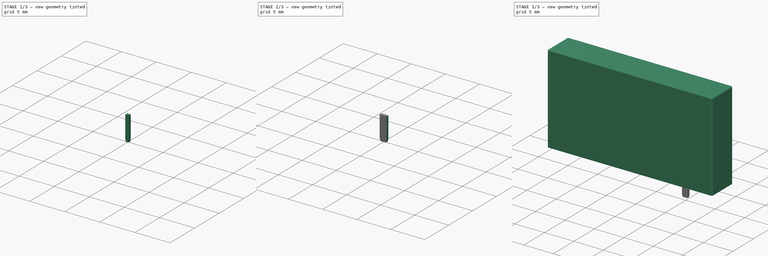
[diagram: build sequence overview — one tinted view per stage of 3, left to right]
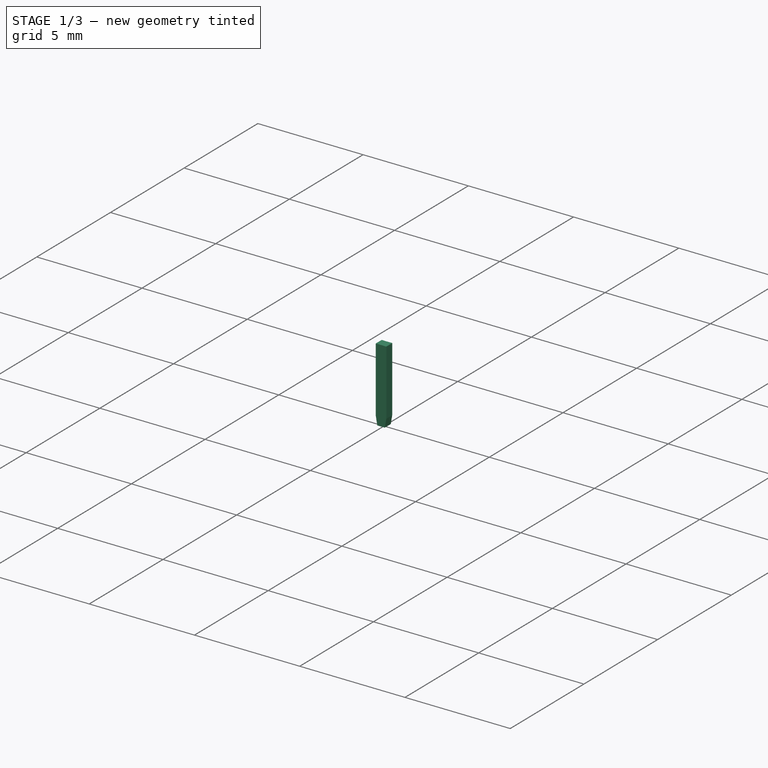
[diagram: stage 1 of 3 — iso view after this stage's code; geometry added in this stage tinted green]
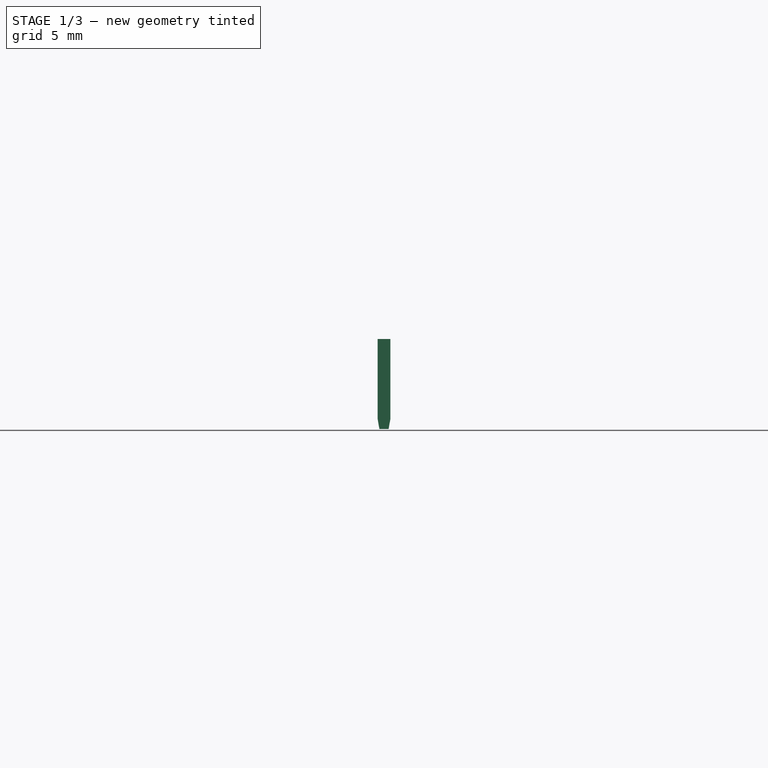
[diagram: stage 1 of 3 — front view after this stage's code; geometry added in this stage tinted green]
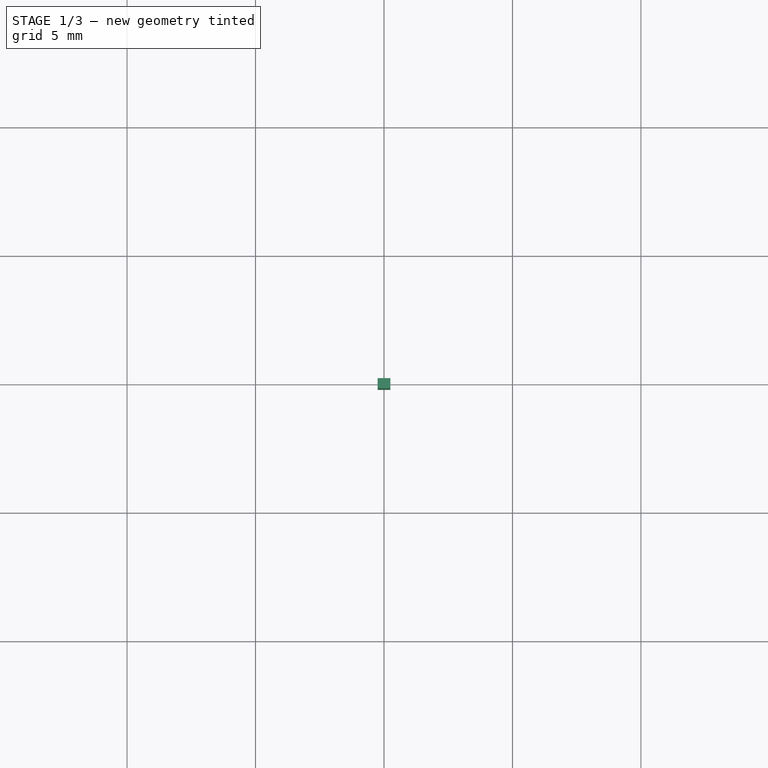
[diagram: stage 1 of 3 — top view after this stage's code; geometry added in this stage tinted green]
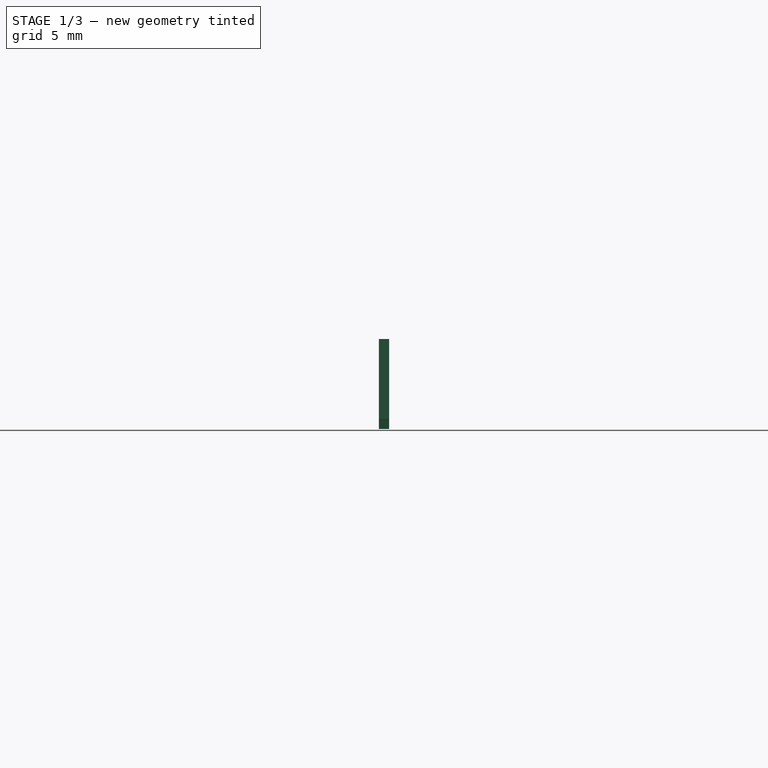
[diagram: stage 1 of 3 — right view after this stage's code; geometry added in this stage tinted green]
FCSTD DOCUMENT  (FreeCAD 0.19R21125 (Git))
Label: FTR-LY_Cxxx
License: All rights reserved
LicenseURL: http://en.wikipedia.org/wiki/All_rights_reserved
objects: Sketcher::SketchObject×3, PartDesign::Pad×3, PartDesign::Body×3, App::Link×3, PartDesign::Chamfer×2, PartDesign::Fillet×1
note: 18 computed .brp shape members not serialized (recipe doc carries the construction recipe); baked Part::Feature solids carry a one-line shape summary decoded from their .brp

FEATURE [PartDesign::Body] Body001  label="Pin 11"
  Group = -> [Sketch001,Pad001,Chamfer]
  Origin = -> Origin001
  Tip = -> Chamfer
FEATURE [App::Link] Link  label="Pin 14"
  LinkPlacement = pos=(5.04,0,0) rot=(0,0,1;0rad)
  LinkedObject = -> Body001
  Placement = pos=(5.04,0,0) rot=(0,0,1;0rad)
FEATURE [App::Link] Link001  label="Pin 12"
  LinkPlacement = pos=(-5.04,0,0) rot=(0,0,1;0rad)
  LinkedObject = -> Body001
  Placement = pos=(-5.04,0,0) rot=(0,0,1;0rad)
FEATURE [Sketcher::SketchObject] Sketch002
  MapMode = 5
  Support = -> [XY_Plane002]
  sketch-geometry (4):
    g0: LineSegment StartX=-0.25 StartY=0.2 StartZ=0 EndX=0.25 EndY=0.2 EndZ=0
    g1: LineSegment StartX=0.25 StartY=0.2 StartZ=0 EndX=0.25 EndY=-0.2 EndZ=0
    g2: LineSegment StartX=0.25 StartY=-0.2 StartZ=0 EndX=-0.25 EndY=-0.2 EndZ=0
    g3: LineSegment StartX=-0.25 StartY=-0.2 StartZ=0 EndX=-0.25 EndY=0.2 EndZ=0
  constraints (10):
    c: Coincident(g0,g1)
    c: Coincident(g1,g2)
    c: Coincident(g2,g3)
    c: Coincident(g3,g0)
    c: Horizontal(g2)
    c: Vertical(g3)
    c: DistanceX(g0,g0) = 0.5
    c: DistanceY(g1,g1) = 0.4
    c: Symmetric(g0,g0,g-2)
    c: Symmetric(g0,g1,g-1)
FEATURE [PartDesign::Pad] Pad002
  Length = 3.5
  Length2 = 100
  Profile = -> Sketch002
  Reversed = true
  Type = 0
FEATURE [App::Link] Link002  label="Pin A2"
  LinkPlacement = pos=(-16.38,0,0) rot=(0,0,1;0rad)
  LinkedObject = -> Body002
  Placement = pos=(-16.38,0,0) rot=(0,0,1;0rad)
FEATURE [PartDesign::Chamfer] Chamfer001
  Angle = 10
  Base = -> Pad002 [Edge7,Edge12]
  BaseFeature = -> Pad002
  Size = 0.4
  SupportTransform = true
FEATURE [PartDesign::Body] Body002  label="Pin A1"
  Group = -> [Sketch002,Pad002,Chamfer001]
  Origin = -> Origin002
  Placement = pos=(-20.16,0,0) rot=(0,0,1;0rad)
  Tip = -> Chamfer001
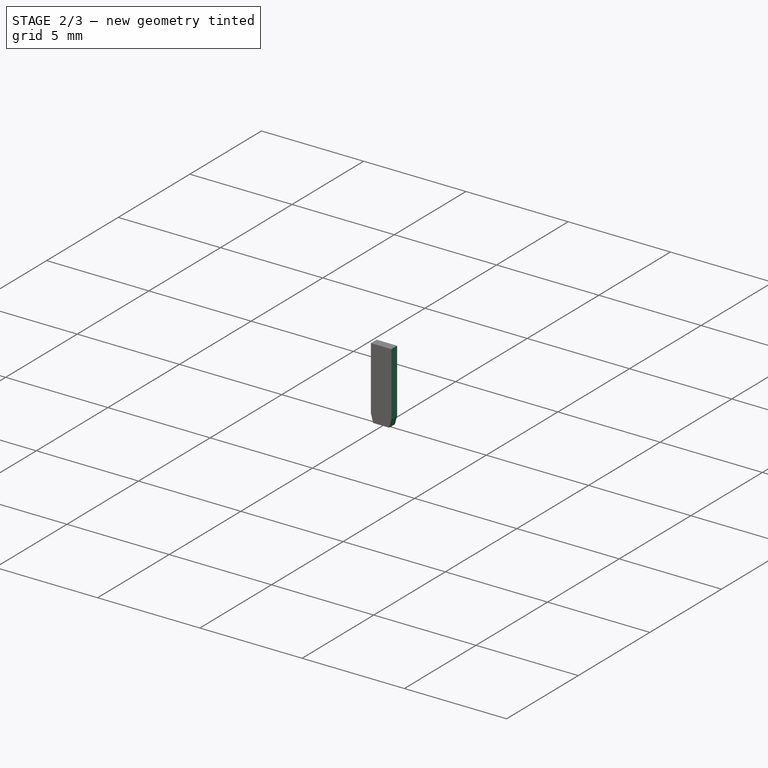
[diagram: stage 2 of 3 — iso view after this stage's code; geometry added in this stage tinted green]
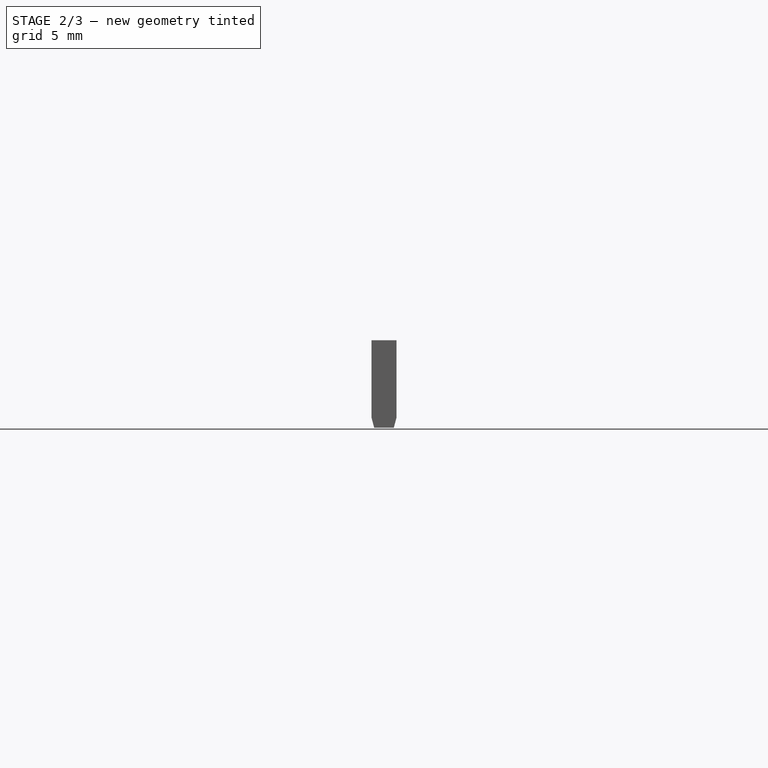
[diagram: stage 2 of 3 — front view after this stage's code; geometry added in this stage tinted green]
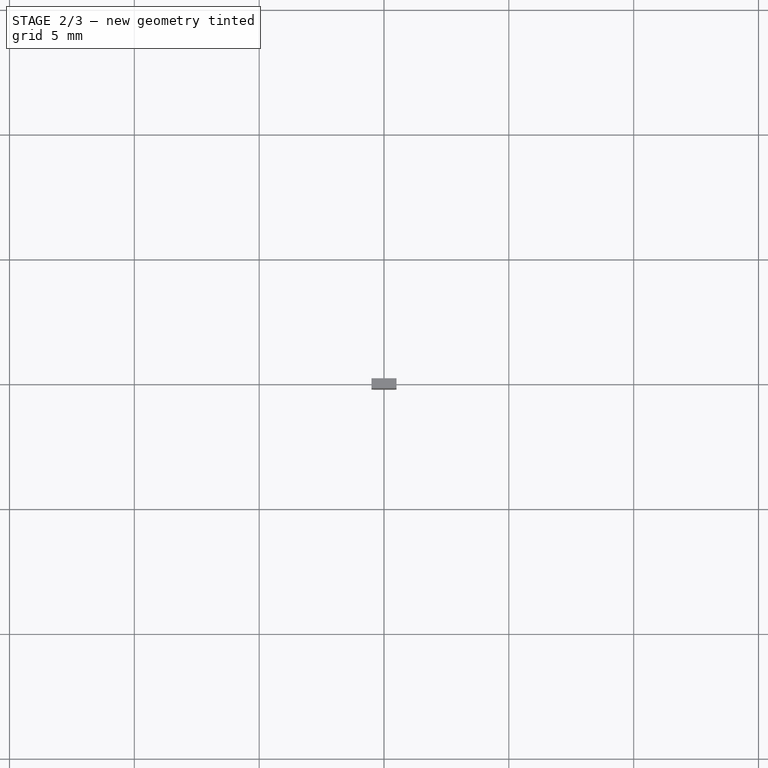
[diagram: stage 2 of 3 — top view after this stage's code; geometry added in this stage tinted green]
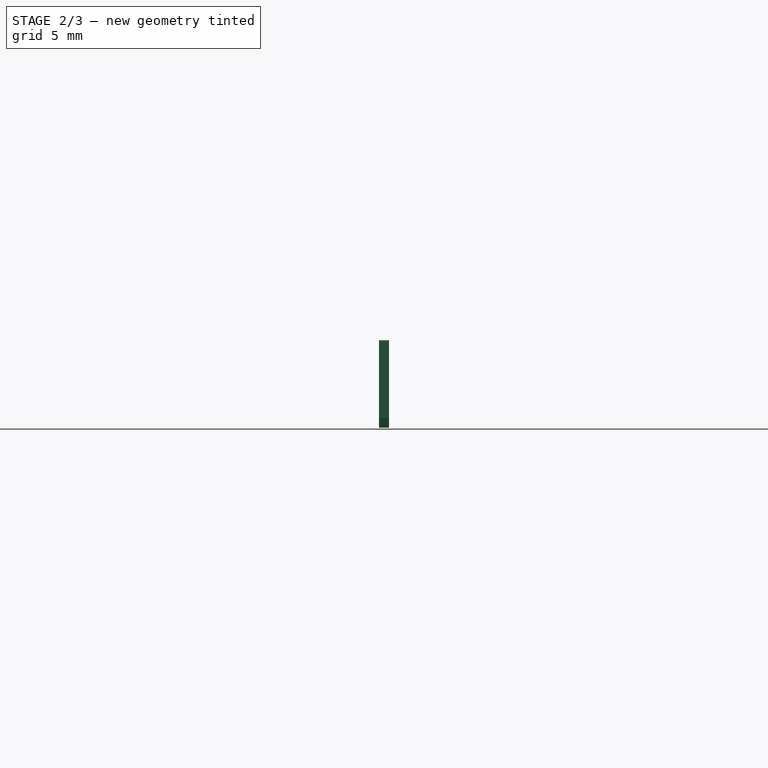
[diagram: stage 2 of 3 — right view after this stage's code; geometry added in this stage tinted green]
FEATURE [PartDesign::Body] Body  label="Gehaeuse"
  Group = -> [Sketch,Pad,Fillet]
  Origin = -> Origin
  Tip = -> Fillet
FEATURE [Sketcher::SketchObject] Sketch001
  MapMode = 5
  Support = -> [XY_Plane001]
  sketch-geometry (4):
    g0: LineSegment StartX=-0.5 StartY=0.2 StartZ=0 EndX=0.5 EndY=0.2 EndZ=0
    g1: LineSegment StartX=0.5 StartY=0.2 StartZ=0 EndX=0.5 EndY=-0.2 EndZ=0
    g2: LineSegment StartX=0.5 StartY=-0.2 StartZ=0 EndX=-0.5 EndY=-0.2 EndZ=0
    g3: LineSegment StartX=-0.5 StartY=-0.2 StartZ=0 EndX=-0.5 EndY=0.2 EndZ=0
  constraints (10):
    c: Coincident(g0,g1)
    c: Coincident(g1,g2)
    c: Coincident(g2,g3)
    c: Coincident(g3,g0)
    c: Horizontal(g2)
    c: Vertical(g3)
    c: DistanceX(g0,g0) = 1
    c: DistanceY(g1,g1) = 0.4
    c: Symmetric(g0,g0,g-2)
    c: Symmetric(g0,g1,g-1)
FEATURE [PartDesign::Pad] Pad001
  Length = 3.5
  Length2 = 100
  Profile = -> Sketch001
  Reversed = true
  Type = 0
FEATURE [PartDesign::Chamfer] Chamfer
  Angle = 15
  Base = -> Pad001 [Edge12,Edge7]
  BaseFeature = -> Pad001
  Size = 0.4
  SupportTransform = true
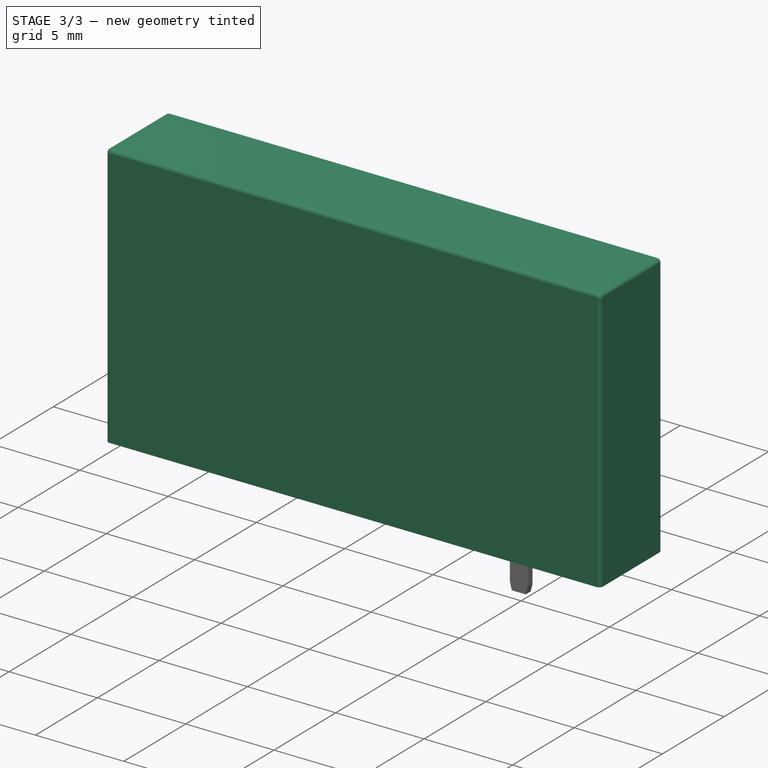
[diagram: stage 3 of 3 — iso view after this stage's code; geometry added in this stage tinted green]
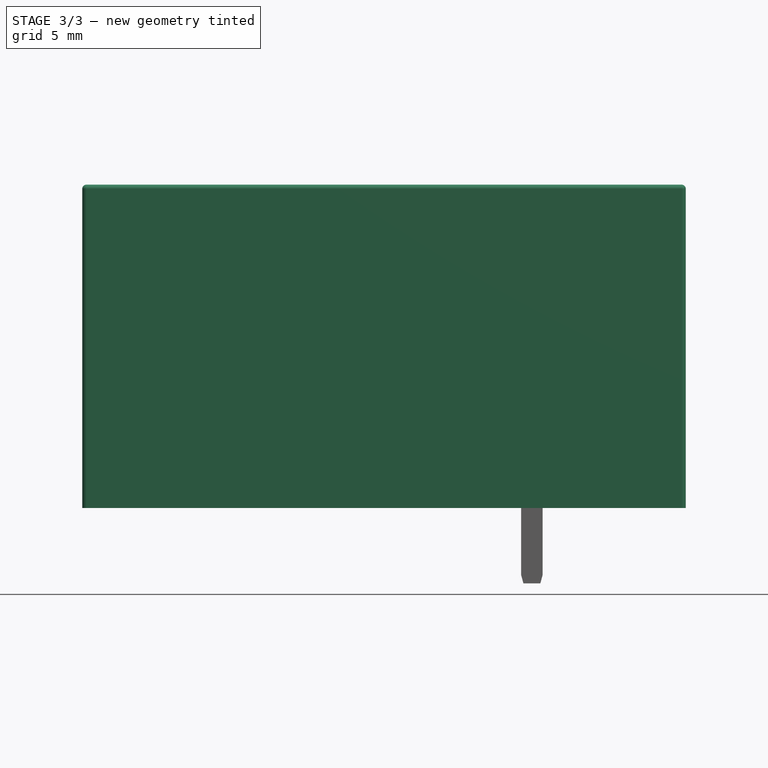
[diagram: stage 3 of 3 — front view after this stage's code; geometry added in this stage tinted green]
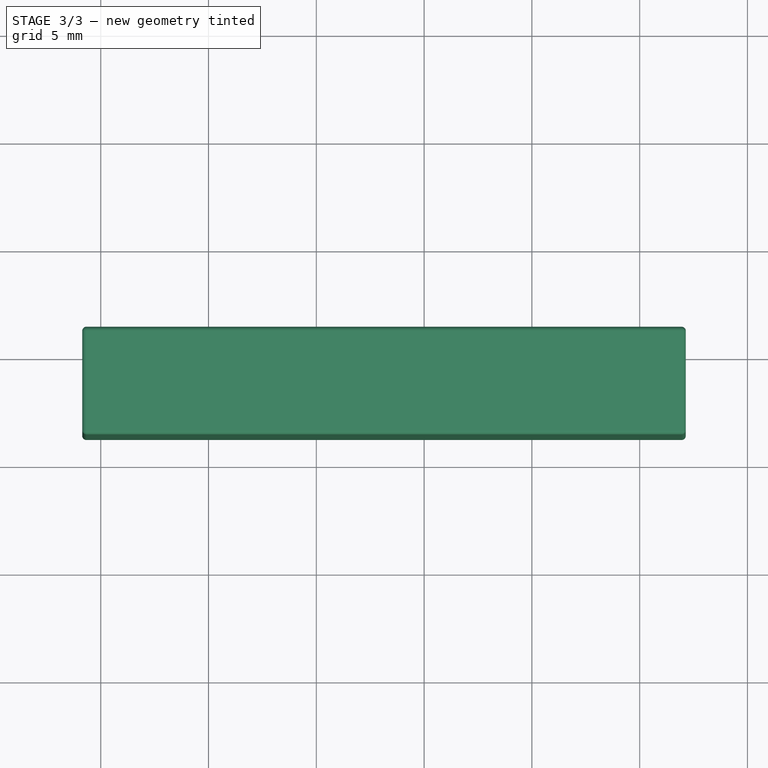
[diagram: stage 3 of 3 — top view after this stage's code; geometry added in this stage tinted green]
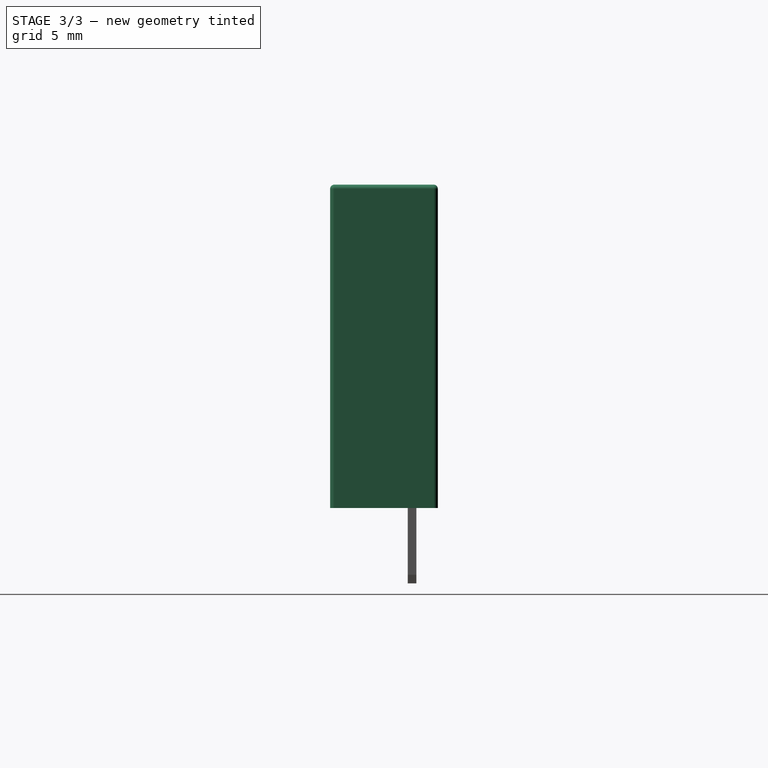
[diagram: stage 3 of 3 — right view after this stage's code; geometry added in this stage tinted green]
FEATURE [Sketcher::SketchObject] Sketch
  MapMode = 5
  Support = -> [XY_Plane]
  sketch-geometry (4):
    g0: LineSegment StartX=7.14 StartY=-3.8 StartZ=0 EndX=-20.86 EndY=-3.8 EndZ=0
    g1: LineSegment StartX=-20.86 StartY=-3.8 StartZ=0 EndX=-20.86 EndY=1.2 EndZ=0
    g2: LineSegment StartX=-20.86 StartY=1.2 StartZ=0 EndX=7.14 EndY=1.2 EndZ=0
    g3: LineSegment StartX=7.14 StartY=1.2 StartZ=0 EndX=7.14 EndY=-3.8 EndZ=0
  constraints (12):
    c: Coincident(g0,g1)
    c: Coincident(g1,g2)
    c: Coincident(g2,g3)
    c: Coincident(g3,g0)
    c: Horizontal(g0)
    c: Horizontal(g2)
    c: Vertical(g1)
    c: Vertical(g3)
    c: DistanceX(g2,g2) = 28
    c: DistanceY(g3,g3) = 5
    c: DistanceX(g-1,g2) = 7.14
    c: DistanceY(g-1,g2) = 1.2
FEATURE [PartDesign::Pad] Pad
  Length = 15
  Length2 = 100
  Profile = -> Sketch
  Type = 0
FEATURE [PartDesign::Fillet] Fillet
  Base = -> Pad [Edge1,Edge4,Edge12,Edge10,Edge8,Edge5,Edge2,Edge7]
  BaseFeature = -> Pad
  Radius = 0.2
  SupportTransform = true
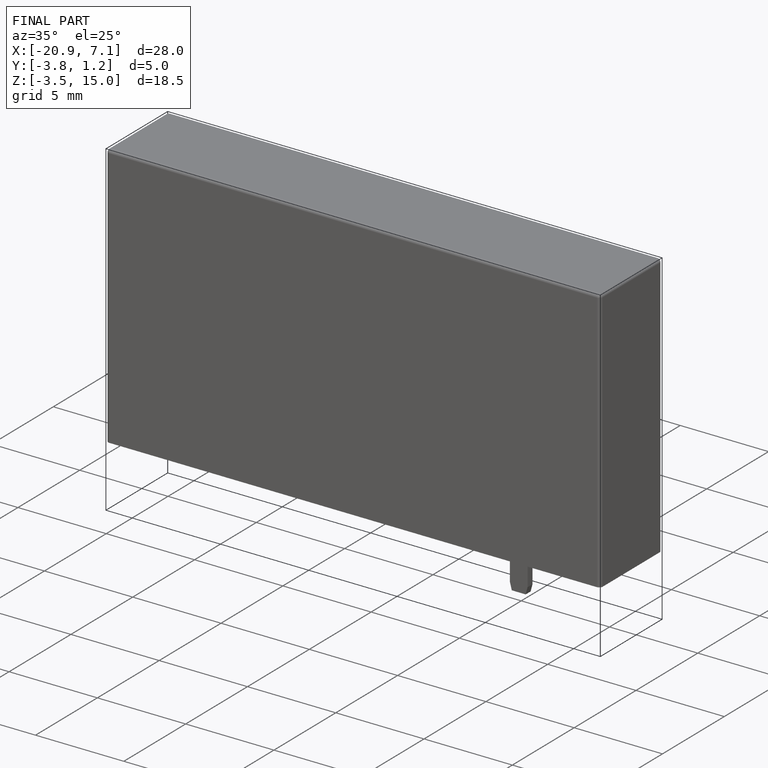
[diagram: finished part — iso view with bounding-box wireframe]
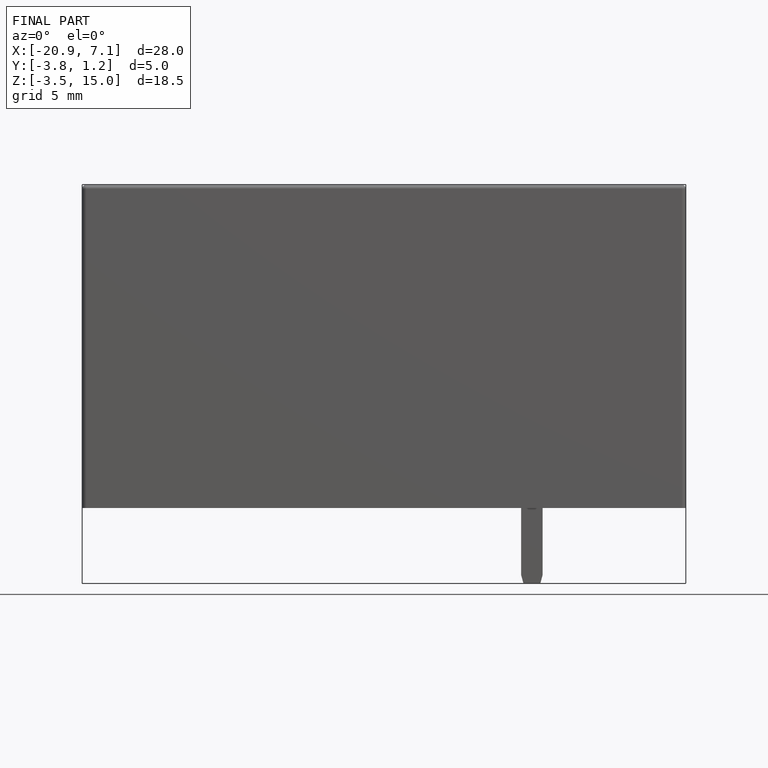
[diagram: finished part — front view with bounding-box wireframe]
